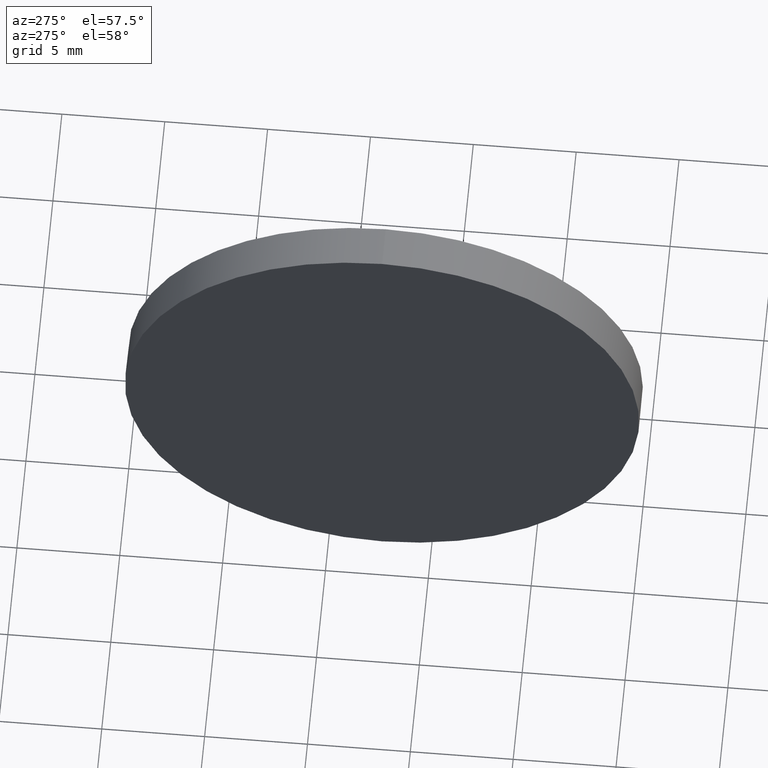
[diagram: clean part render]
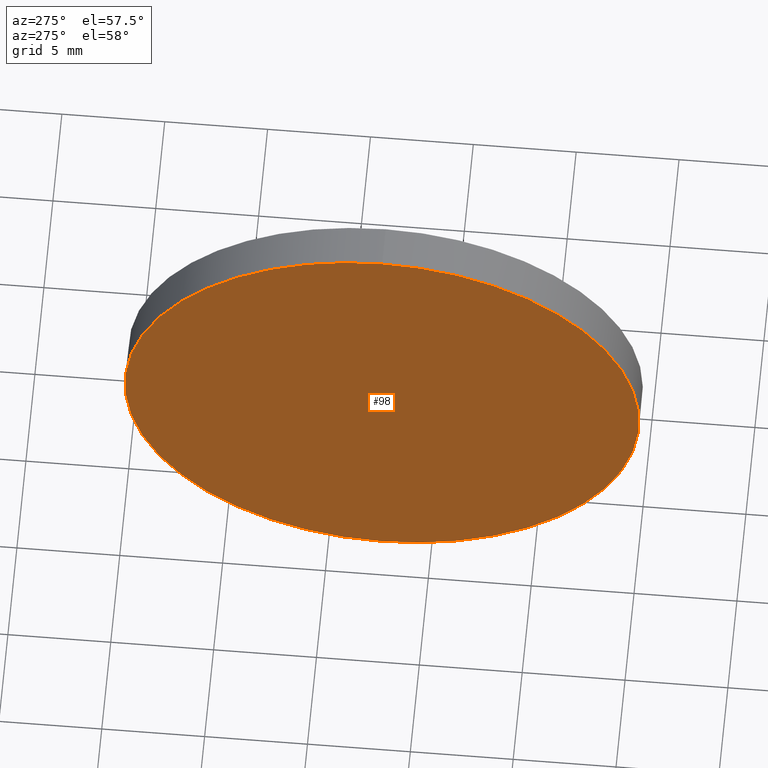
[diagram: same view with one face highlighted and labeled with its STEP entity id]
A machine part, auxiliary view. The second image highlights one B-rep face of the part: STEP entity #98.
In plain terms, the highlighted planar face has unit normal (1, 0, 0).
Its self-contained STEP definition (entity closure, byte-faithful):
#12 = EDGE_CURVE ( 'NONE', #182, #137, #157, .T. ) ;
#16 = DIRECTION ( 'NONE',  ( 1.000000000000000000, 0.0000000000000000000, 0.0000000000000000000 ) ) ;
#19 = CARTESIAN_POINT ( 'NONE',  ( 426.5777282207968100, 122.3870715266886200, 0.0000000000000000000 ) ) ;
#30 = FACE_OUTER_BOUND ( 'NONE', #127, .T. ) ;
#32 = AXIS2_PLACEMENT_3D ( 'NONE', #19, #148, #123 ) ;
#33 = PLANE ( 'NONE',  #99 ) ;
#49 = DIRECTION ( 'NONE',  ( 0.0000000000000000000, 0.0000000000000000000, -1.000000000000000000 ) ) ;
#58 = CARTESIAN_POINT ( 'NONE',  ( 426.5777282207968100, 122.3870715266886200, -12.49999999999999600 ) ) ;
#64 = CARTESIAN_POINT ( 'NONE',  ( 426.5777282207968100, 122.3870715266886200, 12.49999999999999600 ) ) ;
#87 = ORIENTED_EDGE ( 'NONE', *, *, #12, .T. ) ;
#98 = ADVANCED_FACE ( 'NONE', ( #30 ), #33, .F. ) ;
#99 = AXIS2_PLACEMENT_3D ( 'NONE', #143, #16, #49 ) ;
#101 = CARTESIAN_POINT ( 'NONE',  ( 426.5777282207968100, 122.3870715266886200, 0.0000000000000000000 ) ) ;
#102 = DIRECTION ( 'NONE',  ( 0.0000000000000000000, 0.0000000000000000000, 1.000000000000000000 ) ) ;
#112 = CIRCLE ( 'NONE', #32, 12.49999999999999600 ) ;
#123 = DIRECTION ( 'NONE',  ( 0.0000000000000000000, 0.0000000000000000000, 1.000000000000000000 ) ) ;
#127 = EDGE_LOOP ( 'NONE', ( #87, #156 ) ) ;
#137 = VERTEX_POINT ( 'NONE', #58 ) ;
#143 = CARTESIAN_POINT ( 'NONE',  ( 426.5777282207968100, 122.3870715266886200, 0.0000000000000000000 ) ) ;
#148 = DIRECTION ( 'NONE',  ( -1.000000000000000000, -0.0000000000000000000, -0.0000000000000000000 ) ) ;
#151 = AXIS2_PLACEMENT_3D ( 'NONE', #101, #175, #102 ) ;
#156 = ORIENTED_EDGE ( 'NONE', *, *, #184, .T. ) ;
#157 = CIRCLE ( 'NONE', #151, 12.49999999999999600 ) ;
#175 = DIRECTION ( 'NONE',  ( -1.000000000000000000, -0.0000000000000000000, -0.0000000000000000000 ) ) ;
#182 = VERTEX_POINT ( 'NONE', #64 ) ;
#184 = EDGE_CURVE ( 'NONE', #137, #182, #112, .T. ) ;